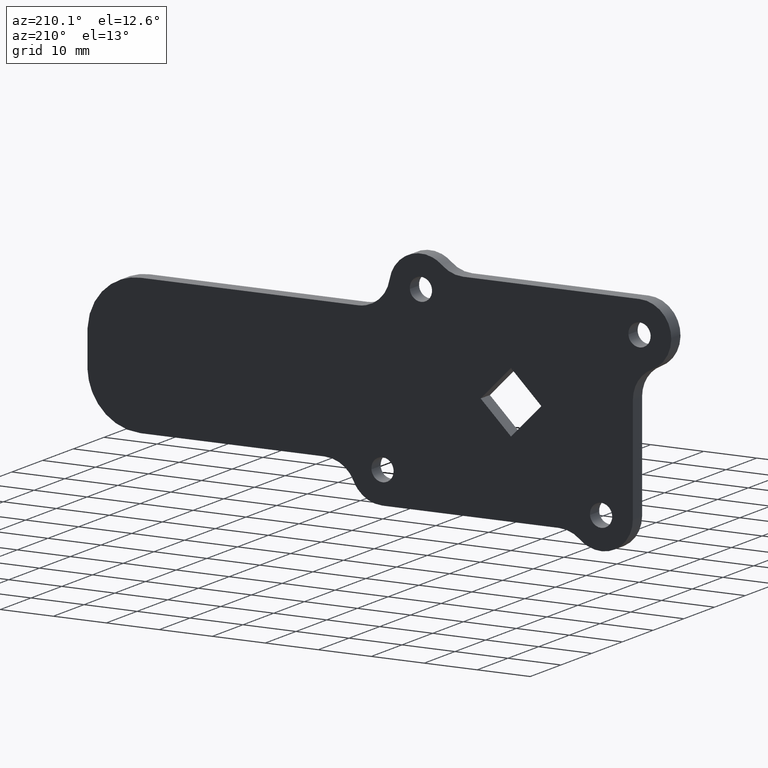
[diagram: clean part render]
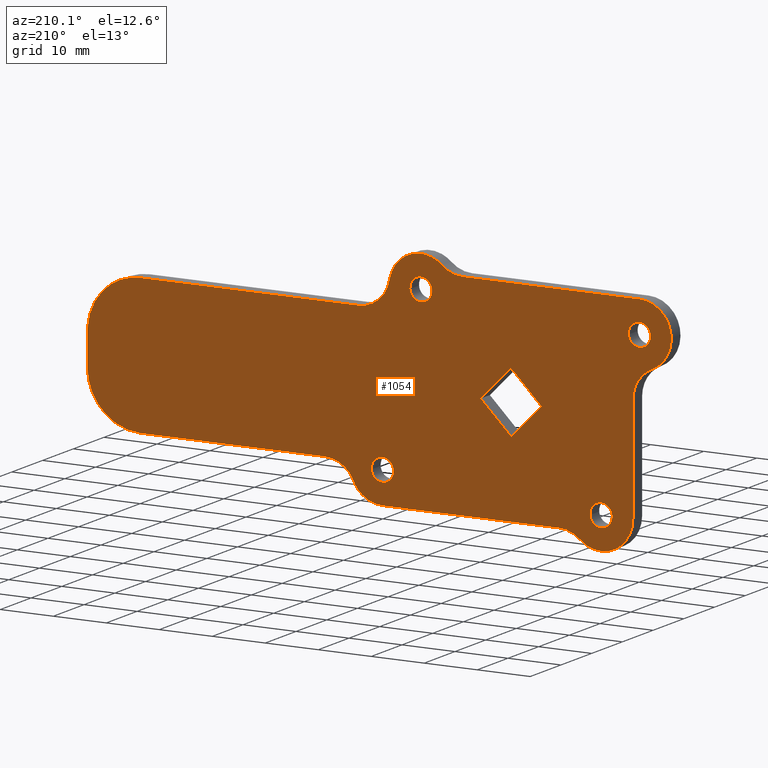
[diagram: same view with one face highlighted and labeled with its STEP entity id]
A machine part, auxiliary view. The second image highlights one B-rep face of the part: STEP entity #1054.
In plain terms, the highlighted face is a freeform B-spline surface patch.
Its self-contained STEP definition (entity closure, byte-faithful):
#62=CARTESIAN_POINT('',(24.250000000000000,0.0,-11.900000000000000));
#63=VERTEX_POINT('',#62);
#64=CARTESIAN_POINT('',(22.156473599172632,-9.714451E-017,-13.835235898816560));
#65=VERTEX_POINT('',#64);
#66=CARTESIAN_POINT('',(24.250000000000000,0.0,-11.900000000000000));
#67=CARTESIAN_POINT('',(22.308779967806036,0.0,-11.900000000000000));
#68=CARTESIAN_POINT('',(22.156473599172624,-9.714451E-017,-13.835235898816553));
#76=(BOUNDED_CURVE()B_SPLINE_CURVE(2,(#66,#67,#68),.UNSPECIFIED.,.F.,.U.)B_SPLINE_CURVE_WITH_KNOTS((3,3),(0.0,0.236331300607388),.UNSPECIFIED.)CURVE()GEOMETRIC_REPRESENTATION_ITEM()RATIONAL_B_SPLINE_CURVE((1.0,0.723120658634930,0.969723356118852))REPRESENTATION_ITEM(''));
#77=EDGE_CURVE('',#63,#65,#76,.T.);
#79=CARTESIAN_POINT('',(26.343526400827368,-9.714451E-017,-14.164764101183451));
#80=VERTEX_POINT('',#79);
#81=CARTESIAN_POINT('',(26.343526400827372,-9.714451E-017,-14.164764101183447));
#82=CARTESIAN_POINT('',(26.350000000000001,0.0,-14.082509224871794));
#83=CARTESIAN_POINT('',(26.350000000000001,0.0,-14.0));
#84=CARTESIAN_POINT('',(26.350000000000005,0.0,-11.900000000000000));
#85=CARTESIAN_POINT('',(24.250000000000000,0.0,-11.900000000000000));
#93=(BOUNDED_CURVE()B_SPLINE_CURVE(2,(#81,#82,#83,#84,#85),.UNSPECIFIED.,.F.,.U.)B_SPLINE_CURVE_WITH_KNOTS((3,2,3),(0.736331300607388,0.750000000000000,1.0),.UNSPECIFIED.)CURVE()GEOMETRIC_REPRESENTATION_ITEM()RATIONAL_B_SPLINE_CURVE((0.969723356118852,0.983986122551617,1.0,0.707106781186548,1.0))REPRESENTATION_ITEM(''));
#94=EDGE_CURVE('',#80,#63,#93,.T.);
#161=CARTESIAN_POINT('',(24.250000000000000,0.0,-16.100000000000001));
#162=VERTEX_POINT('',#161);
#163=CARTESIAN_POINT('',(22.156473599172621,-9.714451E-017,-13.835235898816560));
#164=CARTESIAN_POINT('',(22.150000000000002,0.0,-13.917490775128211));
#165=CARTESIAN_POINT('',(22.149999999999999,0.0,-14.0));
#166=CARTESIAN_POINT('',(22.150000000000002,0.0,-16.100000000000005));
#167=CARTESIAN_POINT('',(24.250000000000000,0.0,-16.100000000000001));
#175=(BOUNDED_CURVE()B_SPLINE_CURVE(2,(#163,#164,#165,#166,#167),.UNSPECIFIED.,.F.,.U.)B_SPLINE_CURVE_WITH_KNOTS((3,2,3),(0.236331300607388,0.250000000000000,0.500000000000000),.UNSPECIFIED.)CURVE()GEOMETRIC_REPRESENTATION_ITEM()RATIONAL_B_SPLINE_CURVE((0.969723356118852,0.983986122551618,1.0,0.707106781186548,1.0))REPRESENTATION_ITEM(''));
#176=EDGE_CURVE('',#65,#162,#175,.T.);
#210=CARTESIAN_POINT('',(24.250000000000000,0.0,-16.100000000000001));
#211=CARTESIAN_POINT('',(26.191220032193961,0.0,-16.099999999999998));
#212=CARTESIAN_POINT('',(26.343526400827379,-9.714451E-017,-14.164764101183449));
#220=(BOUNDED_CURVE()B_SPLINE_CURVE(2,(#210,#211,#212),.UNSPECIFIED.,.F.,.U.)B_SPLINE_CURVE_WITH_KNOTS((3,3),(0.500000000000000,0.736331300607389),.UNSPECIFIED.)CURVE()GEOMETRIC_REPRESENTATION_ITEM()RATIONAL_B_SPLINE_CURVE((1.0,0.723120658634929,0.969723356118853))REPRESENTATION_ITEM(''));
#221=EDGE_CURVE('',#162,#80,#220,.T.);
#244=CARTESIAN_POINT('',(17.0,0.0,19.100000000000001));
#245=VERTEX_POINT('',#244);
#246=CARTESIAN_POINT('',(14.906473599172630,-9.714451E-017,17.164764101183440));
#247=VERTEX_POINT('',#246);
#248=CARTESIAN_POINT('',(17.0,0.0,19.100000000000001));
#249=CARTESIAN_POINT('',(15.058779967806053,0.0,19.100000000000001));
#250=CARTESIAN_POINT('',(14.906473599172633,-9.714451E-017,17.164764101183440));
#258=(BOUNDED_CURVE()B_SPLINE_CURVE(2,(#248,#249,#250),.UNSPECIFIED.,.F.,.U.)B_SPLINE_CURVE_WITH_KNOTS((3,3),(0.0,0.236331300607388),.UNSPECIFIED.)CURVE()GEOMETRIC_REPRESENTATION_ITEM()RATIONAL_B_SPLINE_CURVE((1.0,0.723120658634930,0.969723356118852))REPRESENTATION_ITEM(''));
#259=EDGE_CURVE('',#245,#247,#258,.T.);
#261=CARTESIAN_POINT('',(19.093526400827368,-9.714451E-017,16.835235898816560));
#262=VERTEX_POINT('',#261);
#263=CARTESIAN_POINT('',(19.093526400827372,-9.714451E-017,16.835235898816560));
#264=CARTESIAN_POINT('',(19.100000000000009,0.0,16.917490775128208));
#265=CARTESIAN_POINT('',(19.100000000000001,0.0,17.0));
#266=CARTESIAN_POINT('',(19.100000000000001,0.0,19.100000000000001));
#267=CARTESIAN_POINT('',(17.0,0.0,19.100000000000001));
#275=(BOUNDED_CURVE()B_SPLINE_CURVE(2,(#263,#264,#265,#266,#267),.UNSPECIFIED.,.F.,.U.)B_SPLINE_CURVE_WITH_KNOTS((3,2,3),(0.736331300607388,0.750000000000000,1.0),.UNSPECIFIED.)CURVE()GEOMETRIC_REPRESENTATION_ITEM()RATIONAL_B_SPLINE_CURVE((0.969723356118852,0.983986122551618,1.0,0.707106781186548,1.0))REPRESENTATION_ITEM(''));
#276=EDGE_CURVE('',#262,#245,#275,.T.);
#343=CARTESIAN_POINT('',(17.0,0.0,14.900000000000000));
#344=VERTEX_POINT('',#343);
#345=CARTESIAN_POINT('',(14.906473599172630,-9.714451E-017,17.164764101183447));
#346=CARTESIAN_POINT('',(14.900000000000004,0.0,17.082509224871792));
#347=CARTESIAN_POINT('',(14.900000000000000,0.0,17.0));
#348=CARTESIAN_POINT('',(14.900000000000002,0.0,14.900000000000002));
#349=CARTESIAN_POINT('',(17.0,0.0,14.900000000000000));
#357=(BOUNDED_CURVE()B_SPLINE_CURVE(2,(#345,#346,#347,#348,#349),.UNSPECIFIED.,.F.,.U.)B_SPLINE_CURVE_WITH_KNOTS((3,2,3),(0.236331300607388,0.250000000000000,0.500000000000000),.UNSPECIFIED.)CURVE()GEOMETRIC_REPRESENTATION_ITEM()RATIONAL_B_SPLINE_CURVE((0.969723356118852,0.983986122551618,1.0,0.707106781186548,1.0))REPRESENTATION_ITEM(''));
#358=EDGE_CURVE('',#247,#344,#357,.T.);
#392=CARTESIAN_POINT('',(17.0,0.0,14.900000000000000));
#393=CARTESIAN_POINT('',(18.941220032193968,0.0,14.900000000000002));
#394=CARTESIAN_POINT('',(19.093526400827372,-9.714451E-017,16.835235898816553));
#402=(BOUNDED_CURVE()B_SPLINE_CURVE(2,(#392,#393,#394),.UNSPECIFIED.,.F.,.U.)B_SPLINE_CURVE_WITH_KNOTS((3,3),(0.500000000000000,0.736331300607389),.UNSPECIFIED.)CURVE()GEOMETRIC_REPRESENTATION_ITEM()RATIONAL_B_SPLINE_CURVE((1.0,0.723120658634929,0.969723356118853))REPRESENTATION_ITEM(''));
#403=EDGE_CURVE('',#344,#262,#402,.T.);
#426=CARTESIAN_POINT('',(-24.250000000000000,0.0,16.099999999999799));
#427=VERTEX_POINT('',#426);
#428=CARTESIAN_POINT('',(-26.343526400827368,-9.714451E-017,14.164764101183250));
#429=VERTEX_POINT('',#428);
#430=CARTESIAN_POINT('',(-24.250000000000000,0.0,16.099999999999799));
#431=CARTESIAN_POINT('',(-26.191220032193943,0.0,16.099999999999802));
#432=CARTESIAN_POINT('',(-26.343526400827372,-9.714451E-017,14.164764101183248));
#440=(BOUNDED_CURVE()B_SPLINE_CURVE(2,(#430,#431,#432),.UNSPECIFIED.,.F.,.U.)B_SPLINE_CURVE_WITH_KNOTS((3,3),(0.0,0.236331300607388),.UNSPECIFIED.)CURVE()GEOMETRIC_REPRESENTATION_ITEM()RATIONAL_B_SPLINE_CURVE((1.0,0.723120658634930,0.969723356118852))REPRESENTATION_ITEM(''));
#441=EDGE_CURVE('',#427,#429,#440,.T.);
#443=CARTESIAN_POINT('',(-22.156473599172632,-9.714451E-017,13.835235898816350));
#444=VERTEX_POINT('',#443);
#445=CARTESIAN_POINT('',(-22.156473599172628,-9.714451E-017,13.835235898816354));
#446=CARTESIAN_POINT('',(-22.149999999999995,0.0,13.917490775128005));
#447=CARTESIAN_POINT('',(-22.149999999999999,0.0,13.999999999999799));
#448=CARTESIAN_POINT('',(-22.150000000000002,0.0,16.099999999999795));
#449=CARTESIAN_POINT('',(-24.250000000000000,0.0,16.099999999999799));
#457=(BOUNDED_CURVE()B_SPLINE_CURVE(2,(#445,#446,#447,#448,#449),.UNSPECIFIED.,.F.,.U.)B_SPLINE_CURVE_WITH_KNOTS((3,2,3),(0.736331300607388,0.750000000000000,1.0),.UNSPECIFIED.)CURVE()GEOMETRIC_REPRESENTATION_ITEM()RATIONAL_B_SPLINE_CURVE((0.969723356118852,0.983986122551617,1.0,0.707106781186548,1.0))REPRESENTATION_ITEM(''));
#458=EDGE_CURVE('',#444,#427,#457,.T.);
#525=CARTESIAN_POINT('',(-24.250000000000000,0.0,11.899999999999800));
#526=VERTEX_POINT('',#525);
#527=CARTESIAN_POINT('',(-26.343526400827372,-9.714451E-017,14.164764101183241));
#528=CARTESIAN_POINT('',(-26.350000000000001,0.0,14.082509224871600));
#529=CARTESIAN_POINT('',(-26.350000000000001,0.0,13.999999999999799));
#530=CARTESIAN_POINT('',(-26.350000000000005,0.0,11.899999999999800));
#531=CARTESIAN_POINT('',(-24.250000000000000,0.0,11.899999999999800));
#539=(BOUNDED_CURVE()B_SPLINE_CURVE(2,(#527,#528,#529,#530,#531),.UNSPECIFIED.,.F.,.U.)B_SPLINE_CURVE_WITH_KNOTS((3,2,3),(0.236331300607388,0.250000000000000,0.500000000000000),.UNSPECIFIED.)CURVE()GEOMETRIC_REPRESENTATION_ITEM()RATIONAL_B_SPLINE_CURVE((0.969723356118852,0.983986122551617,1.0,0.707106781186548,1.0))REPRESENTATION_ITEM(''));
#540=EDGE_CURVE('',#429,#526,#539,.T.);
#574=CARTESIAN_POINT('',(-24.250000000000000,0.0,11.899999999999800));
#575=CARTESIAN_POINT('',(-22.308779967806036,0.0,11.899999999999798));
#576=CARTESIAN_POINT('',(-22.156473599172628,-9.714451E-017,13.835235898816356));
#584=(BOUNDED_CURVE()B_SPLINE_CURVE(2,(#574,#575,#576),.UNSPECIFIED.,.F.,.U.)B_SPLINE_CURVE_WITH_KNOTS((3,3),(0.500000000000000,0.736331300607389),.UNSPECIFIED.)CURVE()GEOMETRIC_REPRESENTATION_ITEM()RATIONAL_B_SPLINE_CURVE((1.0,0.723120658634929,0.969723356118853))REPRESENTATION_ITEM(''));
#585=EDGE_CURVE('',#526,#444,#584,.T.);
#608=CARTESIAN_POINT('',(-17.0,0.0,-14.900000000000000));
#609=VERTEX_POINT('',#608);
#610=CARTESIAN_POINT('',(-19.093526400827368,-9.714451E-017,-16.835235898816560));
#611=VERTEX_POINT('',#610);
#612=CARTESIAN_POINT('',(-17.0,0.0,-14.900000000000000));
#613=CARTESIAN_POINT('',(-18.941220032193968,0.0,-14.900000000000002));
#614=CARTESIAN_POINT('',(-19.093526400827372,-9.714451E-017,-16.835235898816563));
#622=(BOUNDED_CURVE()B_SPLINE_CURVE(2,(#612,#613,#614),.UNSPECIFIED.,.F.,.U.)B_SPLINE_CURVE_WITH_KNOTS((3,3),(0.0,0.236331300607389),.UNSPECIFIED.)CURVE()GEOMETRIC_REPRESENTATION_ITEM()RATIONAL_B_SPLINE_CURVE((1.0,0.723120658634929,0.969723356118853))REPRESENTATION_ITEM(''));
#623=EDGE_CURVE('',#609,#611,#622,.T.);
#625=CARTESIAN_POINT('',(-14.906473599172630,-9.714451E-017,-17.164764101183440));
#626=VERTEX_POINT('',#625);
#627=CARTESIAN_POINT('',(-14.906473599172626,-9.714451E-017,-17.164764101183447));
#628=CARTESIAN_POINT('',(-14.900000000000006,0.0,-17.082509224871796));
#629=CARTESIAN_POINT('',(-14.900000000000000,0.0,-17.0));
#630=CARTESIAN_POINT('',(-14.900000000000002,0.0,-14.900000000000002));
#631=CARTESIAN_POINT('',(-17.0,0.0,-14.900000000000000));
#639=(BOUNDED_CURVE()B_SPLINE_CURVE(2,(#627,#628,#629,#630,#631),.UNSPECIFIED.,.F.,.U.)B_SPLINE_CURVE_WITH_KNOTS((3,2,3),(0.736331300607388,0.750000000000000,1.0),.UNSPECIFIED.)CURVE()GEOMETRIC_REPRESENTATION_ITEM()RATIONAL_B_SPLINE_CURVE((0.969723356118852,0.983986122551618,1.0,0.707106781186548,1.0))REPRESENTATION_ITEM(''));
#640=EDGE_CURVE('',#626,#609,#639,.T.);
#707=CARTESIAN_POINT('',(-17.0,0.0,-19.100000000000001));
#708=VERTEX_POINT('',#707);
#709=CARTESIAN_POINT('',(-19.093526400827372,-9.714451E-017,-16.835235898816563));
#710=CARTESIAN_POINT('',(-19.100000000000001,0.0,-16.917490775128204));
#711=CARTESIAN_POINT('',(-19.100000000000001,0.0,-17.0));
#712=CARTESIAN_POINT('',(-19.100000000000001,0.0,-19.100000000000001));
#713=CARTESIAN_POINT('',(-17.0,0.0,-19.100000000000001));
#721=(BOUNDED_CURVE()B_SPLINE_CURVE(2,(#709,#710,#711,#712,#713),.UNSPECIFIED.,.F.,.U.)B_SPLINE_CURVE_WITH_KNOTS((3,2,3),(0.236331300607388,0.250000000000000,0.500000000000000),.UNSPECIFIED.)CURVE()GEOMETRIC_REPRESENTATION_ITEM()RATIONAL_B_SPLINE_CURVE((0.969723356118853,0.983986122551618,1.0,0.707106781186548,1.0))REPRESENTATION_ITEM(''));
#722=EDGE_CURVE('',#611,#708,#721,.T.);
#756=CARTESIAN_POINT('',(-17.0,0.0,-19.100000000000001));
#757=CARTESIAN_POINT('',(-15.058779967806034,0.0,-19.100000000000001));
#758=CARTESIAN_POINT('',(-14.906473599172632,-9.714451E-017,-17.164764101183440));
#766=(BOUNDED_CURVE()B_SPLINE_CURVE(2,(#756,#757,#758),.UNSPECIFIED.,.F.,.U.)B_SPLINE_CURVE_WITH_KNOTS((3,3),(0.500000000000000,0.736331300607389),.UNSPECIFIED.)CURVE()GEOMETRIC_REPRESENTATION_ITEM()RATIONAL_B_SPLINE_CURVE((1.0,0.723120658634929,0.969723356118853))REPRESENTATION_ITEM(''));
#767=EDGE_CURVE('',#708,#626,#766,.T.);
#772=CARTESIAN_POINT('',(-35.755574152783460,0.0,25.296898961075069));
#773=CARTESIAN_POINT('',(85.506923528599273,0.0,25.296898961075069));
#774=CARTESIAN_POINT('',(-35.755574152783460,0.0,-25.293885241510829));
#775=CARTESIAN_POINT('',(85.506923528599273,0.0,-25.293885241510829));
#776=B_SPLINE_SURFACE_WITH_KNOTS('',1,1,((#772,#774),(#773,#775)),.UNSPECIFIED.,.F.,.F.,.U.,(2,2),(2,2),(0.0,121.262497681382700),(0.0,50.590784202585887),.UNSPECIFIED.);
#777=CARTESIAN_POINT('',(9.062745999999788,0.0,20.0));
#778=VERTEX_POINT('',#777);
#779=CARTESIAN_POINT('',(13.031372958014700,0.0,21.499999992431150));
#780=VERTEX_POINT('',#779);
#781=CARTESIAN_POINT('',(9.062745999999788,0.0,20.0));
#782=CARTESIAN_POINT('',(11.330532831516484,0.0,19.999999999999790));
#783=CARTESIAN_POINT('',(13.031372958014700,0.0,21.499999992431139));
#791=(BOUNDED_CURVE()B_SPLINE_CURVE(2,(#781,#782,#783),.UNSPECIFIED.,.F.,.U.)CURVE()GEOMETRIC_REPRESENTATION_ITEM()QUASI_UNIFORM_CURVE()RATIONAL_B_SPLINE_CURVE((1.0,0.935414347030622,1.0))REPRESENTATION_ITEM(''));
#792=EDGE_CURVE('',#778,#780,#791,.T.);
#793=ORIENTED_EDGE('',*,*,#792,.T.);
#794=CARTESIAN_POINT('',(22.916079703088549,0.0,17.999999961437901));
#795=VERTEX_POINT('',#794);
#796=CARTESIAN_POINT('',(22.916079703088531,0.0,17.999999961437890));
#797=CARTESIAN_POINT('',(22.328118228345623,0.0,21.478427039214264));
#798=CARTESIAN_POINT('',(19.002658944565361,0.0,22.655913422621470));
#799=CARTESIAN_POINT('',(15.677199660785096,0.0,23.833399806028670));
#800=CARTESIAN_POINT('',(13.031372958014710,0.0,21.499999992431139));
#808=(BOUNDED_CURVE()B_SPLINE_CURVE(2,(#796,#797,#798,#799,#800),.UNSPECIFIED.,.F.,.U.)B_SPLINE_CURVE_WITH_KNOTS((3,2,3),(0.0,0.500000000000000,1.0),.UNSPECIFIED.)CURVE()GEOMETRIC_REPRESENTATION_ITEM()RATIONAL_B_SPLINE_CURVE((1.0,0.862037346963936,1.0,0.862037346963936,1.0))REPRESENTATION_ITEM(''));
#809=EDGE_CURVE('',#795,#780,#808,.T.);
#810=ORIENTED_EDGE('',*,*,#809,.F.);
#811=CARTESIAN_POINT('',(28.832159490147600,0.0,12.999999938013421));
#812=VERTEX_POINT('',#811);
#813=CARTESIAN_POINT('',(22.916079703088521,0.0,17.999999961437890));
#814=CARTESIAN_POINT('',(23.761233941413554,0.0,12.999999938013397));
#815=CARTESIAN_POINT('',(28.832159490147600,0.0,12.999999938013399));
#823=(BOUNDED_CURVE()B_SPLINE_CURVE(2,(#813,#814,#815),.UNSPECIFIED.,.F.,.U.)CURVE()GEOMETRIC_REPRESENTATION_ITEM()QUASI_UNIFORM_CURVE()RATIONAL_B_SPLINE_CURVE((1.0,0.763762614548062,1.0))REPRESENTATION_ITEM(''));
#824=EDGE_CURVE('',#795,#812,#823,.T.);
#825=ORIENTED_EDGE('',*,*,#824,.T.);
#826=CARTESIAN_POINT('',(69.935685229771096,0.0,12.999999938013421));
#827=VERTEX_POINT('',#826);
#828=CARTESIAN_POINT('',(28.832159490147600,0.0,12.999999938013421));
#829=CARTESIAN_POINT('',(69.935685229771096,0.0,12.999999938013421));
#830=QUASI_UNIFORM_CURVE('',1,(#828,#829),.UNSPECIFIED.,.F.,.U.);
#831=EDGE_CURVE('',#812,#827,#830,.T.);
#832=ORIENTED_EDGE('',*,*,#831,.T.);
#833=CARTESIAN_POINT('',(79.926497335431591,0.0,3.428571366584855));
#834=VERTEX_POINT('',#833);
#835=CARTESIAN_POINT('',(79.926497335431591,0.0,3.428571366584852));
#836=CARTESIAN_POINT('',(79.515916016020881,0.0,12.999999938013415));
#837=CARTESIAN_POINT('',(69.935685229771096,0.0,12.999999938013421));
#845=(BOUNDED_CURVE()B_SPLINE_CURVE(2,(#835,#836,#837),.UNSPECIFIED.,.F.,.U.)CURVE()GEOMETRIC_REPRESENTATION_ITEM()QUASI_UNIFORM_CURVE()RATIONAL_B_SPLINE_CURVE((1.0,0.722100111777150,1.0))REPRESENTATION_ITEM(''));
#846=EDGE_CURVE('',#834,#827,#845,.T.);
#847=ORIENTED_EDGE('',*,*,#846,.F.);
#848=CARTESIAN_POINT('',(79.926497335431591,0.0,-3.428571490558090));
#849=VERTEX_POINT('',#848);
#850=CARTESIAN_POINT('',(79.926497335431563,0.0,-3.428571490558105));
#851=CARTESIAN_POINT('',(80.073571240892107,0.0,-0.000000061986611));
#852=CARTESIAN_POINT('',(79.926497335431563,0.0,3.428571366584841));
#860=(BOUNDED_CURVE()B_SPLINE_CURVE(2,(#850,#851,#852),.UNSPECIFIED.,.F.,.U.)CURVE()GEOMETRIC_REPRESENTATION_ITEM()QUASI_UNIFORM_CURVE()RATIONAL_B_SPLINE_CURVE((1.0,0.999081210566049,1.0))REPRESENTATION_ITEM(''));
#861=EDGE_CURVE('',#849,#834,#860,.T.);
#862=ORIENTED_EDGE('',*,*,#861,.F.);
#863=CARTESIAN_POINT('',(69.935685229771096,0.0,-13.000000061986681));
#864=VERTEX_POINT('',#863);
#865=CARTESIAN_POINT('',(69.935685229771096,0.0,-13.000000061986681));
#866=CARTESIAN_POINT('',(79.515916016020896,0.0,-13.000000061986681));
#867=CARTESIAN_POINT('',(79.926497335431591,0.0,-3.428571490558094));
#875=(BOUNDED_CURVE()B_SPLINE_CURVE(2,(#865,#866,#867),.UNSPECIFIED.,.F.,.U.)CURVE()GEOMETRIC_REPRESENTATION_ITEM()QUASI_UNIFORM_CURVE()RATIONAL_B_SPLINE_CURVE((1.0,0.722100111777149,1.0))REPRESENTATION_ITEM(''));
#876=EDGE_CURVE('',#864,#849,#875,.T.);
#877=ORIENTED_EDGE('',*,*,#876,.F.);
#878=CARTESIAN_POINT('',(35.158712490147600,0.0,-13.000000061986681));
#879=VERTEX_POINT('',#878);
#880=CARTESIAN_POINT('',(69.935685229771096,0.0,-13.000000061986681));
#881=CARTESIAN_POINT('',(35.158712490147600,0.0,-13.000000061986681));
#882=QUASI_UNIFORM_CURVE('',1,(#880,#881),.UNSPECIFIED.,.F.,.U.);
#883=EDGE_CURVE('',#864,#879,#882,.T.);
#884=ORIENTED_EDGE('',*,*,#883,.T.);
#885=CARTESIAN_POINT('',(29.704356001279251,0.0,-16.500000407296351));
#886=VERTEX_POINT('',#885);
#887=CARTESIAN_POINT('',(35.158712490147607,0.0,-13.000000061986711));
#888=CARTESIAN_POINT('',(31.308578341594821,0.0,-12.999999886627148));
#889=CARTESIAN_POINT('',(29.704356001279240,0.0,-16.500000407296341));
#897=(BOUNDED_CURVE()B_SPLINE_CURVE(2,(#887,#888,#889),.UNSPECIFIED.,.F.,.U.)CURVE()GEOMETRIC_REPRESENTATION_ITEM()QUASI_UNIFORM_CURVE()RATIONAL_B_SPLINE_CURVE((1.0,0.841625382135877,1.0))REPRESENTATION_ITEM(''));
#898=EDGE_CURVE('',#879,#886,#897,.T.);
#899=ORIENTED_EDGE('',*,*,#898,.T.);
#900=CARTESIAN_POINT('',(24.249999928595351,0.0,-20.000000440821150));
#901=VERTEX_POINT('',#900);
#902=CARTESIAN_POINT('',(24.249999928595351,0.0,-20.000000440821140));
#903=CARTESIAN_POINT('',(28.100133642145749,0.0,-20.000000440821136));
#904=CARTESIAN_POINT('',(29.704356001279258,0.0,-16.500000407296358));
#912=(BOUNDED_CURVE()B_SPLINE_CURVE(2,(#902,#903,#904),.UNSPECIFIED.,.F.,.U.)CURVE()GEOMETRIC_REPRESENTATION_ITEM()QUASI_UNIFORM_CURVE()RATIONAL_B_SPLINE_CURVE((1.0,0.841625409870449,1.0))REPRESENTATION_ITEM(''));
#913=EDGE_CURVE('',#901,#886,#912,.T.);
#914=ORIENTED_EDGE('',*,*,#913,.F.);
#915=CARTESIAN_POINT('',(-9.062746071404551,0.0,-20.000000440821150));
#916=VERTEX_POINT('',#915);
#917=CARTESIAN_POINT('',(24.249999928595351,0.0,-20.000000440821150));
#918=CARTESIAN_POINT('',(-9.062746071404551,0.0,-20.000000440821150));
#919=QUASI_UNIFORM_CURVE('',1,(#917,#918),.UNSPECIFIED.,.F.,.U.);
#920=EDGE_CURVE('',#901,#916,#919,.T.);
#921=ORIENTED_EDGE('',*,*,#920,.T.);
#922=CARTESIAN_POINT('',(-13.031373029419299,0.0,-21.500000433252399));
#923=VERTEX_POINT('',#922);
#924=CARTESIAN_POINT('',(-9.062746071404551,0.0,-20.000000440821150));
#925=CARTESIAN_POINT('',(-11.330532902921144,0.0,-20.000000440821143));
#926=CARTESIAN_POINT('',(-13.031373029419290,0.0,-21.500000433252410));
#934=(BOUNDED_CURVE()B_SPLINE_CURVE(2,(#924,#925,#926),.UNSPECIFIED.,.F.,.U.)CURVE()GEOMETRIC_REPRESENTATION_ITEM()QUASI_UNIFORM_CURVE()RATIONAL_B_SPLINE_CURVE((1.0,0.935414347030624,1.0))REPRESENTATION_ITEM(''));
#935=EDGE_CURVE('',#916,#923,#934,.T.);
#936=ORIENTED_EDGE('',*,*,#935,.T.);
#937=CARTESIAN_POINT('',(-22.999999987434101,0.0,-17.000000425683702));
#938=VERTEX_POINT('',#937);
#939=CARTESIAN_POINT('',(-22.999999987434101,0.0,-17.000000425683702));
#940=CARTESIAN_POINT('',(-22.999999987434101,0.0,-20.874508288017651));
#941=CARTESIAN_POINT('',(-19.468626959245679,0.0,-22.468627389926588));
#942=CARTESIAN_POINT('',(-15.937253931057271,0.0,-24.062746491835529));
#943=CARTESIAN_POINT('',(-13.031373029419310,0.0,-21.500000433252399));
#951=(BOUNDED_CURVE()B_SPLINE_CURVE(2,(#939,#940,#941,#942,#943),.UNSPECIFIED.,.F.,.U.)B_SPLINE_CURVE_WITH_KNOTS((3,2,3),(0.0,0.500000000000000,1.0),.UNSPECIFIED.)CURVE()GEOMETRIC_REPRESENTATION_ITEM()RATIONAL_B_SPLINE_CURVE((1.0,0.840070779349950,1.0,0.840070779349950,1.0))REPRESENTATION_ITEM(''));
#952=EDGE_CURVE('',#938,#923,#951,.T.);
#953=ORIENTED_EDGE('',*,*,#952,.F.);
#954=CARTESIAN_POINT('',(-22.999999987434101,0.0,2.980131574316295));
#955=VERTEX_POINT('',#954);
#956=CARTESIAN_POINT('',(-22.999999987434101,0.0,-17.000000425683702));
#957=CARTESIAN_POINT('',(-22.999999987434101,0.0,2.980131574316295));
#958=QUASI_UNIFORM_CURVE('',1,(#956,#957),.UNSPECIFIED.,.F.,.U.);
#959=EDGE_CURVE('',#938,#955,#958,.T.);
#960=ORIENTED_EDGE('',*,*,#959,.T.);
#961=CARTESIAN_POINT('',(-26.624999993717051,0.0,8.490065787158050));
#962=VERTEX_POINT('',#961);
#963=CARTESIAN_POINT('',(-22.999999987434101,0.0,2.980131574316295));
#964=CARTESIAN_POINT('',(-22.999999987434098,0.0,6.927547132746373));
#965=CARTESIAN_POINT('',(-26.624999993717051,0.0,8.490065787158043));
#973=(BOUNDED_CURVE()B_SPLINE_CURVE(2,(#963,#964,#965),.UNSPECIFIED.,.F.,.U.)CURVE()GEOMETRIC_REPRESENTATION_ITEM()QUASI_UNIFORM_CURVE()RATIONAL_B_SPLINE_CURVE((1.0,0.835414068676777,1.0))REPRESENTATION_ITEM(''));
#974=EDGE_CURVE('',#955,#962,#973,.T.);
#975=ORIENTED_EDGE('',*,*,#974,.T.);
#976=CARTESIAN_POINT('',(-24.250000000000000,0.0,20.0));
#977=VERTEX_POINT('',#976);
#978=CARTESIAN_POINT('',(-24.250000000000000,0.0,20.0));
#979=CARTESIAN_POINT('',(-29.138340524028237,0.0,19.999999999999797));
#980=CARTESIAN_POINT('',(-30.126206483652979,0.0,15.212516953066750));
#981=CARTESIAN_POINT('',(-31.114072443277720,0.0,10.425033906133697));
#982=CARTESIAN_POINT('',(-26.624999993717051,0.0,8.490065787158052));
#990=(BOUNDED_CURVE()B_SPLINE_CURVE(2,(#978,#979,#980,#981,#982),.UNSPECIFIED.,.F.,.U.)B_SPLINE_CURVE_WITH_KNOTS((3,2,3),(0.0,0.500000000000000,1.0),.UNSPECIFIED.)CURVE()GEOMETRIC_REPRESENTATION_ITEM()RATIONAL_B_SPLINE_CURVE((1.0,0.775269681738068,1.0,0.775269681738068,1.0))REPRESENTATION_ITEM(''));
#991=EDGE_CURVE('',#977,#962,#990,.T.);
#992=ORIENTED_EDGE('',*,*,#991,.F.);
#993=CARTESIAN_POINT('',(-24.250000000000000,0.0,20.0));
#994=CARTESIAN_POINT('',(9.062745999999788,0.0,20.0));
#995=QUASI_UNIFORM_CURVE('',1,(#993,#994),.UNSPECIFIED.,.F.,.U.);
#996=EDGE_CURVE('',#977,#778,#995,.T.);
#997=ORIENTED_EDGE('',*,*,#996,.T.);
#998=EDGE_LOOP('',(#793,#810,#825,#832,#847,#862,#877,#884,#899,#914,#921,#936,#953,#960,#975,#992,#997));
#999=FACE_OUTER_BOUND('',#998,.T.);
#1000=CARTESIAN_POINT('',(5.727564487131860,0.0,0.000000049504934));
#1001=VERTEX_POINT('',#1000);
#1002=CARTESIAN_POINT('',(-0.000000049504948,0.0,-5.727564487132040));
#1003=VERTEX_POINT('',#1002);
#1004=CARTESIAN_POINT('',(5.727564487131860,0.0,0.000000049504934));
#1005=CARTESIAN_POINT('',(-0.000000049504948,0.0,-5.727564487132040));
#1006=QUASI_UNIFORM_CURVE('',1,(#1004,#1005),.UNSPECIFIED.,.F.,.U.);
#1007=EDGE_CURVE('',#1001,#1003,#1006,.T.);
#1008=ORIENTED_EDGE('',*,*,#1007,.F.);
#1009=CARTESIAN_POINT('',(-0.000000049504951,0.0,5.727565388121859));
#1010=VERTEX_POINT('',#1009);
#1011=CARTESIAN_POINT('',(-0.000000049504951,0.0,5.727565388121859));
#1012=CARTESIAN_POINT('',(5.727564487131860,0.0,0.000000049504934));
#1013=QUASI_UNIFORM_CURVE('',1,(#1011,#1012),.UNSPECIFIED.,.F.,.U.);
#1014=EDGE_CURVE('',#1010,#1001,#1013,.T.);
#1015=ORIENTED_EDGE('',*,*,#1014,.F.);
#1016=CARTESIAN_POINT('',(-5.727565388121960,0.0,0.000000049504939));
#1017=VERTEX_POINT('',#1016);
#1018=CARTESIAN_POINT('',(-5.727565388121960,0.0,0.000000049504939));
#1019=CARTESIAN_POINT('',(-0.000000049504951,0.0,5.727565388121859));
#1020=QUASI_UNIFORM_CURVE('',1,(#1018,#1019),.UNSPECIFIED.,.F.,.U.);
#1021=EDGE_CURVE('',#1017,#1010,#1020,.T.);
#1022=ORIENTED_EDGE('',*,*,#1021,.F.);
#1023=CARTESIAN_POINT('',(-0.000000049504948,0.0,-5.727564487132040));
#1024=CARTESIAN_POINT('',(-5.727565388121960,0.0,0.000000049504939));
#1025=QUASI_UNIFORM_CURVE('',1,(#1023,#1024),.UNSPECIFIED.,.F.,.U.);
#1026=EDGE_CURVE('',#1003,#1017,#1025,.T.);
#1027=ORIENTED_EDGE('',*,*,#1026,.F.);
#1028=EDGE_LOOP('',(#1008,#1015,#1022,#1027));
#1029=FACE_BOUND('',#1028,.T.);
#1030=ORIENTED_EDGE('',*,*,#767,.T.);
#1031=ORIENTED_EDGE('',*,*,#640,.T.);
#1032=ORIENTED_EDGE('',*,*,#623,.T.);
#1033=ORIENTED_EDGE('',*,*,#722,.T.);
#1034=EDGE_LOOP('',(#1030,#1031,#1032,#1033));
#1035=FACE_BOUND('',#1034,.T.);
#1036=ORIENTED_EDGE('',*,*,#585,.T.);
#1037=ORIENTED_EDGE('',*,*,#458,.T.);
#1038=ORIENTED_EDGE('',*,*,#441,.T.);
#1039=ORIENTED_EDGE('',*,*,#540,.T.);
#1040=EDGE_LOOP('',(#1036,#1037,#1038,#1039));
#1041=FACE_BOUND('',#1040,.T.);
#1042=ORIENTED_EDGE('',*,*,#403,.T.);
#1043=ORIENTED_EDGE('',*,*,#276,.T.);
#1044=ORIENTED_EDGE('',*,*,#259,.T.);
#1045=ORIENTED_EDGE('',*,*,#358,.T.);
#1046=EDGE_LOOP('',(#1042,#1043,#1044,#1045));
#1047=FACE_BOUND('',#1046,.T.);
#1048=ORIENTED_EDGE('',*,*,#221,.T.);
#1049=ORIENTED_EDGE('',*,*,#94,.T.);
#1050=ORIENTED_EDGE('',*,*,#77,.T.);
#1051=ORIENTED_EDGE('',*,*,#176,.T.);
#1052=EDGE_LOOP('',(#1048,#1049,#1050,#1051));
#1053=FACE_BOUND('',#1052,.T.);
#1054=ADVANCED_FACE('',(#999,#1029,#1035,#1041,#1047,#1053),#776,.T.);